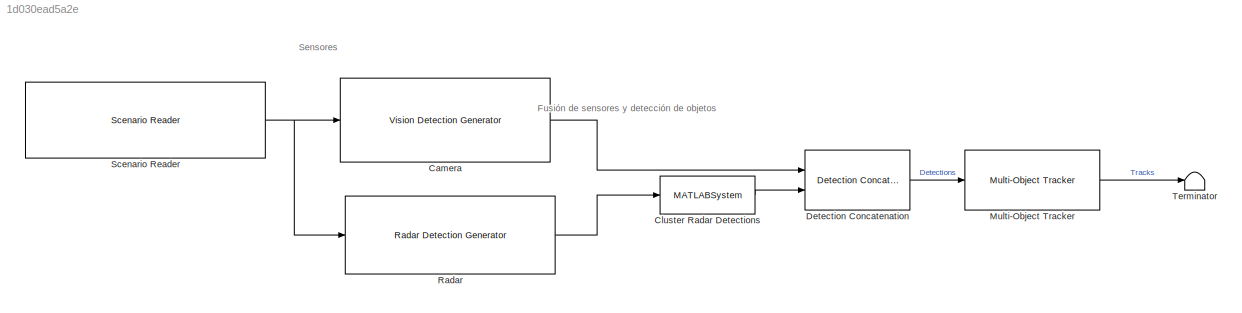
MODEL slx_1d030ead5a2e
KIND model
CONFIG AbsTol = auto
CONFIG EnableMultiTasking = off
CONFIG FixedStep = auto
CONFIG MaxStep = auto
CONFIG MinStep = auto
CONFIG RelTol = 1e-3
CONFIG SampleTimeConstraint = Unconstrained
CONFIG Solver = FixedStepDiscrete
CONFIG SolverName = FixedStepDiscrete
CONFIG StartTime = 0.0
CONFIG StopTime = 10
WORKSPACE source: mxarray member
WORKSPACE firstWarning = 1
WORKSPACE originalScenarioChecksum = '43AE4016A1657D40A8298457D70C5563'
BLOCK [Reference] Camera  REF=drivingscenarioandsensors/Vision Detection Generator
  Ports = [1, 1]
  SourceBlock = drivingscenarioandsensors/Vision Detection Generator
  SourceProductBaseCode = DR
  SourceProductName = Automated Driving Toolbox
  SourceType = visionDetectionGenerator
BLOCK [MATLABSystem] Cluster Radar Detections
  BusName = BusClusterDetections
  BusNameSource = Auto
  ClusterSize = 5
  MaskDisplay = disp(['Detection' char(10) 'Clustering']);\nport_label('input',1,'In');\nport_label('output',1,'Out');
  MaskType = helperClusterDetections
  Ports = [1, 1]
  SimulateUsing = Interpreted execution
  System = helperClusterDetections
BLOCK [Reference] Detection Concatenation  REF=drivinglib/Detection Concatenation
  Ports = [2, 1]
  SourceBlock = drivinglib/Detection Concatenation
  SourceProductBaseCode = DR
  SourceProductName = Automated Driving Toolbox
  SourceType = driving.internal.DetectionConcatenation
BLOCK [Reference] Multi-Object Tracker  REF=drivinglib/Multi-Object Tracker
  Ports = [1, 1]
  SourceBlock = drivinglib/Multi-Object Tracker
  SourceProductBaseCode = DR
  SourceProductName = Automated Driving Toolbox
  SourceType = multiObjectTracker
BLOCK [Reference] Radar  REF=drivingscenarioandsensors/Radar Detection Generator
  Ports = [1, 1]
  SourceBlock = drivingscenarioandsensors/Radar Detection Generator
  SourceProductBaseCode = DR
  SourceProductName = Automated Driving Toolbox
  SourceType = radarDetectionGenerator
BLOCK [Reference] Scenario Reader  REF=drivingscenarioandsensors/Scenario Reader
  Ports = [0, 1]
  SourceBlock = drivingscenarioandsensors/Scenario Reader
  SourceProductBaseCode = DR
  SourceProductName = Automated Driving Toolbox
  SourceType = driving.scenario.internal.ScenarioReader
BLOCK [Terminator] Terminator
ANNOTATION (root): Fusión de sensores y detección de objetos
ANNOTATION (root): Sensores
LINE Camera:1 -> Detection Concatenation:1
LINE Cluster Radar Detections:1 -> Detection Concatenation:2
LINE Detection Concatenation:1 -> Multi-Object Tracker:1
LINE Multi-Object Tracker:1 -> Terminator:1
LINE Radar:1 -> Cluster Radar Detections:1
NET Scenario Reader:1 -> Camera:1, Radar:1
note: NET lines group one-source signal fan-out (src -> all destinations, sorted); 1:1 wires keep LINE
